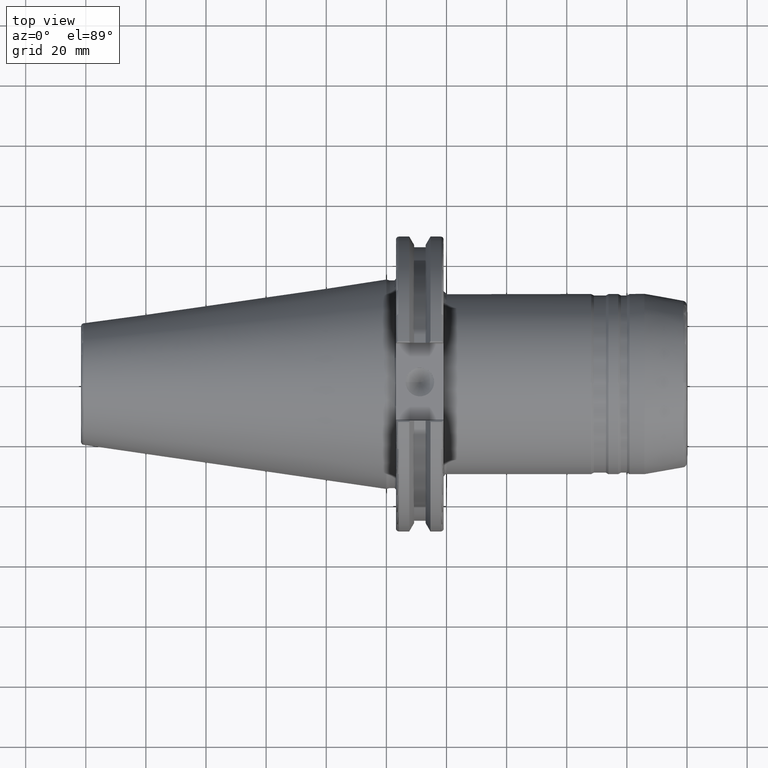
[diagram: clean part render]
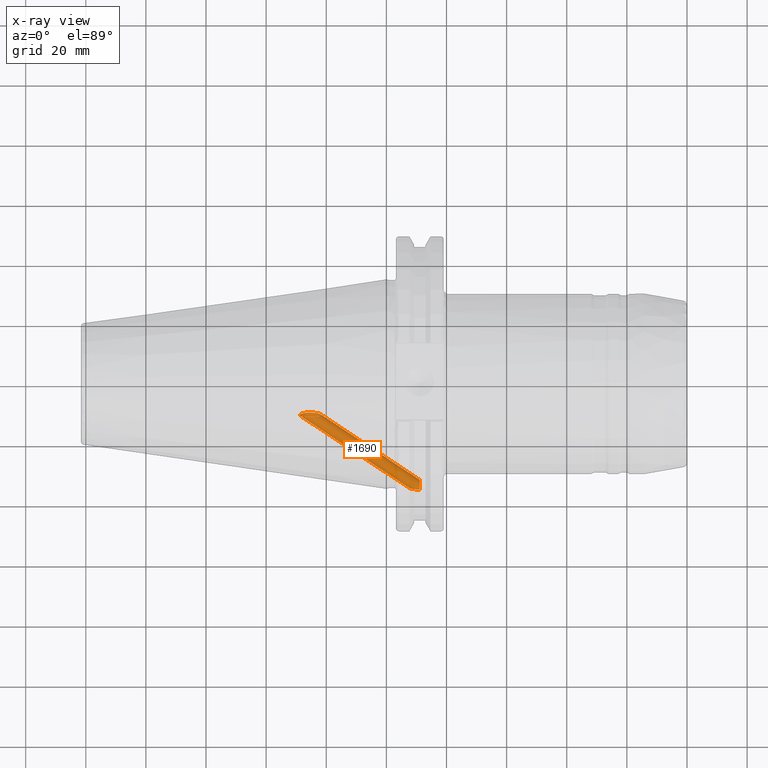
[diagram: x-ray — body ghosted, one internal face saturated and labeled with its STEP entity id]
A machine part, top view, then the same camera in x-ray: the body is ghosted and one INTERNAL B-rep face — a face not visible from any outside direction — is saturated and labeled: STEP entity #1690.
In plain terms, the highlighted cylindrical surface (bore or boss wall) has radius 2.067 mm, axis along (0.8192, -0.539, -0.1962).
Its self-contained STEP definition (entity closure, byte-faithful):
#31=B_SPLINE_CURVE_WITH_KNOTS('',3,(#2753,#2754,#2755,#2756,#2757,#2758,
#2759,#2760,#2761,#2762,#2763,#2764,#2765,#2766,#2767,#2768,#2769,#2770,
#2771,#2772,#2773,#2774),.UNSPECIFIED.,.F.,.F.,(4,2,2,2,2,2,2,2,2,2,4),
(0.,0.263356262559381,0.379400792463201,0.415511189994392,0.451621587525582,
0.487731985056773,0.523842382587963,0.639886912491784,0.903243175051165,
1.03515170477571,1.03931269301749),.UNSPECIFIED.);
#32=B_SPLINE_CURVE_WITH_KNOTS('',3,(#2775,#2776,#2777,#2778,#2779,#2780,
#2781,#2782,#2783,#2784,#2785,#2786,#2787,#2788,#2789,#2790),
 .UNSPECIFIED.,.F.,.F.,(4,2,2,2,2,2,2,4),(1.03931269301749,1.16706023450025,
1.24262540104365,1.31819056758706,1.39375573413046,1.46932090067387,1.60122943039841,
1.73313796012295),.UNSPECIFIED.);
#53=ELLIPSE('',#1882,2.52334107496993,2.067);
#54=ELLIPSE('',#1883,2.52334107496993,2.067);
#55=ELLIPSE('',#1884,3.60370452654881,2.067);
#56=ELLIPSE('',#1885,3.60370452654881,2.067);
#57=ELLIPSE('',#1886,3.60370452654881,2.067);
#193=FACE_OUTER_BOUND('',#303,.T.);
#303=EDGE_LOOP('',(#1285,#1286,#1287,#1288,#1289,#1290,#1291,#1292,#1293));
#406=LINE('',#2855,#500);
#500=VECTOR('',#2251,2.067);
#741=VERTEX_POINT('',#2751);
#742=VERTEX_POINT('',#2752);
#747=VERTEX_POINT('',#2846);
#748=VERTEX_POINT('',#2847);
#749=VERTEX_POINT('',#2849);
#750=VERTEX_POINT('',#2851);
#751=VERTEX_POINT('',#2853);
#939=EDGE_CURVE('',#741,#742,#31,.T.);
#940=EDGE_CURVE('',#742,#741,#32,.T.);
#946=EDGE_CURVE('',#747,#748,#53,.T.);
#947=EDGE_CURVE('',#748,#749,#54,.T.);
#948=EDGE_CURVE('',#749,#750,#55,.T.);
#949=EDGE_CURVE('',#750,#751,#56,.T.);
#950=EDGE_CURVE('',#751,#742,#406,.T.);
#951=EDGE_CURVE('',#751,#747,#57,.T.);
#1285=ORIENTED_EDGE('',*,*,#946,.T.);
#1286=ORIENTED_EDGE('',*,*,#947,.T.);
#1287=ORIENTED_EDGE('',*,*,#948,.T.);
#1288=ORIENTED_EDGE('',*,*,#949,.T.);
#1289=ORIENTED_EDGE('',*,*,#950,.T.);
#1290=ORIENTED_EDGE('',*,*,#940,.T.);
#1291=ORIENTED_EDGE('',*,*,#939,.T.);
#1292=ORIENTED_EDGE('',*,*,#950,.F.);
#1293=ORIENTED_EDGE('',*,*,#951,.T.);
#1635=CYLINDRICAL_SURFACE('',#1881,2.067);
#1690=ADVANCED_FACE('',(#193),#1635,.F.);
#1881=AXIS2_PLACEMENT_3D('',#2845,#2241,#2242);
#1882=AXIS2_PLACEMENT_3D('',#2848,#2243,#2244);
#1883=AXIS2_PLACEMENT_3D('',#2850,#2245,#2246);
#1884=AXIS2_PLACEMENT_3D('',#2852,#2247,#2248);
#1885=AXIS2_PLACEMENT_3D('',#2854,#2249,#2250);
#1886=AXIS2_PLACEMENT_3D('',#2856,#2252,#2253);
#2241=DIRECTION('center_axis',(0.819152044288992,-0.538985544695757,-0.196174694969011));
#2242=DIRECTION('ref_axis',(0.232899439919958,1.19097002014912E-16,0.972500823076757));
#2243=DIRECTION('center_axis',(1.,-8.26894464656789E-16,-3.00964972014558E-16));
#2244=DIRECTION('ref_axis',(9.10217597408032E-16,0.939692620785909,0.342020143325668));
#2245=DIRECTION('center_axis',(1.,-8.26894464656789E-16,-3.00964972014558E-16));
#2246=DIRECTION('ref_axis',(9.10217597408032E-16,0.939692620785909,0.342020143325668));
#2247=DIRECTION('center_axis',(-9.47257532771463E-16,-0.939692620785908,
-0.342020143325669));
#2248=DIRECTION('ref_axis',(1.,-9.81999457758472E-16,-1.92548913285975E-16));
#2249=DIRECTION('center_axis',(-9.47257532771463E-16,-0.939692620785908,
-0.342020143325669));
#2250=DIRECTION('ref_axis',(1.,-9.81999457758472E-16,-1.92548913285975E-16));
#2251=DIRECTION('',(-0.819152044288991,0.538985544695757,0.196174694969011));
#2252=DIRECTION('center_axis',(-9.47257532771463E-16,-0.939692620785908,
-0.342020143325669));
#2253=DIRECTION('ref_axis',(1.,-9.81999457758472E-16,-1.92548913285975E-16));
#2751=CARTESIAN_POINT('',(-25.5235170780255,-10.8455693307922,-1.74780895437107));
#2752=CARTESIAN_POINT('',(-26.9402421845153,-9.52319068260596,-5.47631714500936));
#2753=CARTESIAN_POINT('Ctrl Pts',(-25.5235170780255,-10.8455693307922,-1.74780895437107));
#2754=CARTESIAN_POINT('Ctrl Pts',(-24.6456628694942,-10.8455693307922,-1.74780895437107));
#2755=CARTESIAN_POINT('Ctrl Pts',(-23.6129759087193,-10.8179461434476,-1.95396165756499));
#2756=CARTESIAN_POINT('Ctrl Pts',(-22.4915777455551,-10.6928496109914,-2.5251056642302));
#2757=CARTESIAN_POINT('Ctrl Pts',(-22.1135113311296,-10.6306843167928,-2.78714113742084));
#2758=CARTESIAN_POINT('Ctrl Pts',(-21.8167348410648,-10.5150655626391,-3.18184445243805));
#2759=CARTESIAN_POINT('Ctrl Pts',(-21.751306341111,-10.481522737279,-3.29145252394975));
#2760=CARTESIAN_POINT('Ctrl Pts',(-21.6624430214445,-10.4061442836875,-3.52251896272565));
#2761=CARTESIAN_POINT('Ctrl Pts',(-21.6395918285545,-10.3641615634408,-3.64415337085845));
#2762=CARTESIAN_POINT('Ctrl Pts',(-21.6395918285545,-10.2818250078464,-3.87037119814982));
#2763=CARTESIAN_POINT('Ctrl Pts',(-21.6624430214445,-10.2358005469391,-3.99053453298755));
#2764=CARTESIAN_POINT('Ctrl Pts',(-21.751306341111,-10.1450171485842,-4.21599403040906));
#2765=CARTESIAN_POINT('Ctrl Pts',(-21.8167348410648,-10.1002577332685,-4.32151959704693));
#2766=CARTESIAN_POINT('Ctrl Pts',(-22.1135113311296,-9.93511643701296,-4.69819818081389));
#2767=CARTESIAN_POINT('Ctrl Pts',(-22.4915777455551,-9.81430465972338,-4.93888807981503));
#2768=CARTESIAN_POINT('Ctrl Pts',(-23.6129759087192,-9.54300987243374,-5.45682027341917));
#2769=CARTESIAN_POINT('Ctrl Pts',(-24.6456628694942,-9.43165805828388,-5.63249824870001));
#2770=CARTESIAN_POINT('Ctrl Pts',(-25.9632121771073,-9.43165805828388,-5.63249824870001));
#2771=CARTESIAN_POINT('Ctrl Pts',(-26.442594873787,-9.45709886034953,-5.59098046114587));
#2772=CARTESIAN_POINT('Ctrl Pts',(-26.9116304726285,-9.51928731326139,-5.48310074803666));
#2773=CARTESIAN_POINT('Ctrl Pts',(-26.9259493735239,-9.52122233304375,-5.47974006002988));
#2774=CARTESIAN_POINT('Ctrl Pts',(-26.9402421845154,-9.52319068260616,-5.47631714500933));
#2775=CARTESIAN_POINT('Ctrl Pts',(-26.9402421845154,-9.52319068260616,-5.47631714500933));
#2776=CARTESIAN_POINT('Ctrl Pts',(-27.3790493521749,-9.58362147518866,-5.37122937422736));
#2777=CARTESIAN_POINT('Ctrl Pts',(-27.7931087671317,-9.67645097428544,-5.20740068871255));
#2778=CARTESIAN_POINT('Ctrl Pts',(-28.3252856471715,-9.8663789405842,-4.83322872168078));
#2779=CARTESIAN_POINT('Ctrl Pts',(-28.5137854586409,-9.9541751093878,-4.65275835687149));
#2780=CARTESIAN_POINT('Ctrl Pts',(-28.7750183392881,-10.1396107127252,-4.23344512577805));
#2781=CARTESIAN_POINT('Ctrl Pts',(-28.8470008816521,-10.2368439220049,-3.99395571580179));
#2782=CARTESIAN_POINT('Ctrl Pts',(-28.8470008816521,-10.4091426492823,-3.52056885320648));
#2783=CARTESIAN_POINT('Ctrl Pts',(-28.7750183392881,-10.4885985150108,-3.27460901933327));
#2784=CARTESIAN_POINT('Ctrl Pts',(-28.5137854586409,-10.6160759510423,-2.83420074050785));
#2785=CARTESIAN_POINT('Ctrl Pts',(-28.3252856471715,-10.6648242982181,-2.63951813091313));
#2786=CARTESIAN_POINT('Ctrl Pts',(-27.7822172603396,-10.761788810905,-2.2224376752005));
#2787=CARTESIAN_POINT('Ctrl Pts',(-27.3519799757018,-10.7962891973262,-2.03369662215047));
#2788=CARTESIAN_POINT('Ctrl Pts',(-26.442594873787,-10.8383709964217,-1.79596645716579));
#2789=CARTESIAN_POINT('Ctrl Pts',(-25.9632121771073,-10.8455693307922,-1.74780895437107));
#2790=CARTESIAN_POINT('Ctrl Pts',(-25.5235170780255,-10.8455693307922,-1.74780895437107));
#2845=CARTESIAN_POINT('Origin',(-6.26179816852985,-22.8124367419093,-8.30304794513563));
#2846=CARTESIAN_POINT('',(11.1125,-33.5374193244015,-14.406277823894));
#2847=CARTESIAN_POINT('',(11.1125,-33.9276213900729,-10.3384851041402));
#2848=CARTESIAN_POINT('Origin',(11.1125,-34.2443749606556,-12.4639331767295));
#2849=CARTESIAN_POINT('',(11.1125,-34.9513305969098,-10.521588529565));
#2850=CARTESIAN_POINT('Origin',(11.1125,-34.2443749606556,-12.4639331767295));
#2851=CARTESIAN_POINT('',(9.64922376918121,-34.8904276747021,-10.6889179331096));
#2852=CARTESIAN_POINT('Origin',(11.1125,-34.2443749606557,-12.4639331767295));
#2853=CARTESIAN_POINT('',(9.64922376918122,-33.5983222466092,-14.2389484203494));
#2854=CARTESIAN_POINT('Origin',(11.1125,-34.2443749606557,-12.4639331767295));
#2855=CARTESIAN_POINT('',(-6.7432013108444,-22.8124367419093,-10.3132071464353));
#2856=CARTESIAN_POINT('Origin',(11.1125,-34.2443749606557,-12.4639331767295));